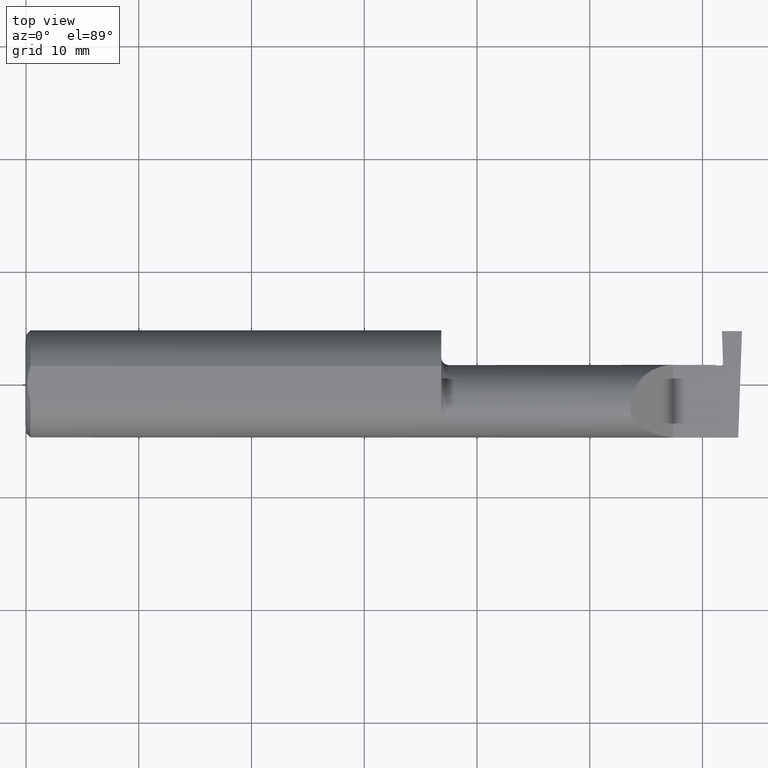
[diagram: clean part render]
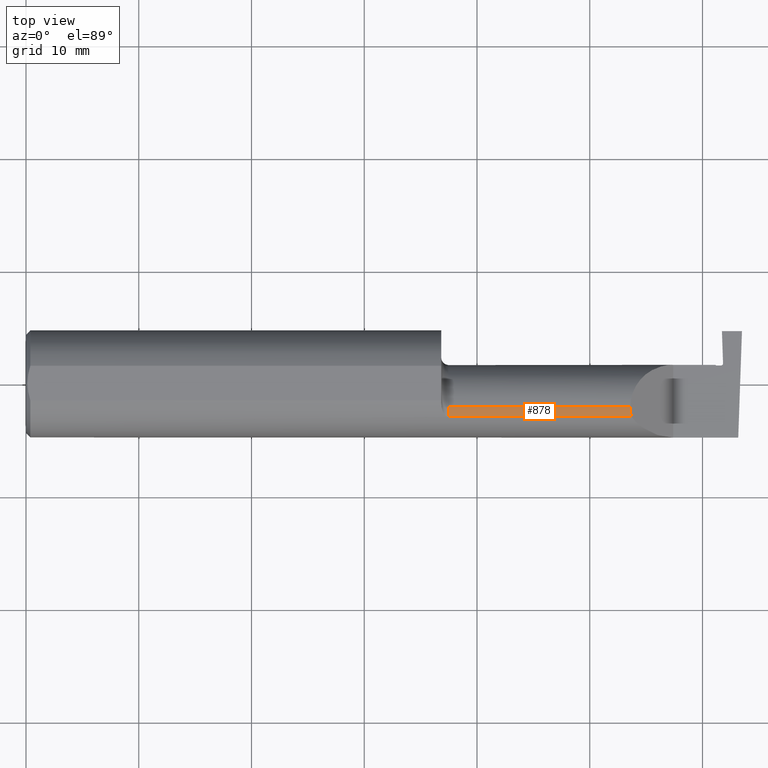
[diagram: same view with one face highlighted and labeled with its STEP entity id]
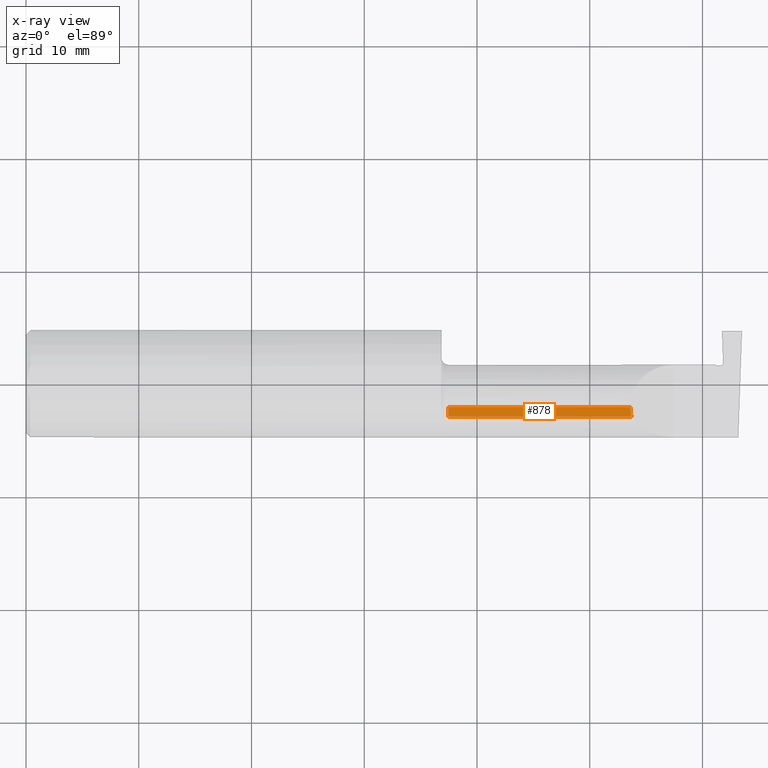
[diagram: x-ray of the same camera — body ghosted, the highlighted face saturated]
A machine part, top view. The second image highlights one B-rep face of the part: STEP entity #878.
The next image is the same camera in x-ray: the body ghosted, the highlighted face saturated — about 0% of this face is hidden behind the body in this view.
In plain terms, the highlighted cylindrical surface (partial cylindrical patch) has radius 3.81 mm, axis along (-1, -0, -0).
Its self-contained STEP definition (entity closure, byte-faithful):
#7 = CARTESIAN_POINT ( 'NONE',  ( 1.474999999999999867, -0.08334999999999996578, 0.000000000000000000 ) ) ;
#44 = CARTESIAN_POINT ( 'NONE',  ( 1.450000000000000178, -0.08334999999999996578, 0.1499999999999999944 ) ) ;
#54 = LINE ( 'NONE', #44, #651 ) ;
#61 = CARTESIAN_POINT ( 'NONE',  ( 2.110000000000001208, -0.08334999999999996578, 0.1499999999999999944 ) ) ;
#92 = ORIENTED_EDGE ( 'NONE', *, *, #244, .F. ) ;
#101 = FACE_OUTER_BOUND ( 'NONE', #793, .T. ) ;
#110 = CARTESIAN_POINT ( 'NONE',  ( 1.474999999999999867, -0.08334999999999996578, 0.1499999999999999944 ) ) ;
#244 = EDGE_CURVE ( 'NONE', #1002, #601, #381, .T. ) ;
#256 = DIRECTION ( 'NONE',  ( 0.000000000000000000, 0.000000000000000000, 1.000000000000000000 ) ) ;
#296 = DIRECTION ( 'NONE',  ( -1.000000000000000000, -0.000000000000000000, -0.000000000000000000 ) ) ;
#304 = EDGE_CURVE ( 'NONE', #312, #421, #945, .T. ) ;
#312 = VERTEX_POINT ( 'NONE', #524 ) ;
#371 = CARTESIAN_POINT ( 'NONE',  ( 2.113883229301070532, -0.1172600179964009143, 0.1461167706989301707 ) ) ;
#381 = CIRCLE ( 'NONE', #966, 0.1499999999999999944 ) ;
#397 = ORIENTED_EDGE ( 'NONE', *, *, #706, .T. ) ;
#420 = LINE ( 'NONE', #974, #770 ) ;
#421 = VERTEX_POINT ( 'NONE', #877 ) ;
#448 = AXIS2_PLACEMENT_3D ( 'NONE', #497, #826, #661 ) ;
#497 = CARTESIAN_POINT ( 'NONE',  ( 1.450000000000000178, -0.08334999999999996578, 0.000000000000000000 ) ) ;
#515 = ORIENTED_EDGE ( 'NONE', *, *, #304, .T. ) ;
#524 = CARTESIAN_POINT ( 'NONE',  ( 2.113883229301070532, -0.1172600179964009143, 0.1461167706989301707 ) ) ;
#526 = CARTESIAN_POINT ( 'NONE',  ( 1.474999999999999867, -0.1172600179964007477, 0.1461167706989302817 ) ) ;
#580 = EDGE_CURVE ( 'NONE', #1002, #312, #420, .T. ) ;
#601 = VERTEX_POINT ( 'NONE', #110 ) ;
#651 = VECTOR ( 'NONE', #296, 39.37007874015748143 ) ;
#661 = DIRECTION ( 'NONE',  ( 0.000000000000000000, 0.000000000000000000, 1.000000000000000000 ) ) ;
#706 = EDGE_CURVE ( 'NONE', #421, #601, #54, .T. ) ;
#750 = CYLINDRICAL_SURFACE ( 'NONE', #448, 0.1499999999999999944 ) ;
#763 = CARTESIAN_POINT ( 'NONE',  ( 2.111300037307155986, -0.1061291577212410964, 0.1486999626928445783 ) ) ;
#770 = VECTOR ( 'NONE', #908, 39.37007874015748143 ) ;
#793 = EDGE_LOOP ( 'NONE', ( #515, #397, #92, #1040 ) ) ;
#826 = DIRECTION ( 'NONE',  ( -1.000000000000000000, -0.000000000000000000, -0.000000000000000000 ) ) ;
#877 = CARTESIAN_POINT ( 'NONE',  ( 2.110000000000001208, -0.08334999999999996578, 0.1499999999999999944 ) ) ;
#878 = ADVANCED_FACE ( 'NONE', ( #101 ), #750, .T. ) ;
#896 = DIRECTION ( 'NONE',  ( -1.000000000000000000, -0.000000000000000000, -0.000000000000000000 ) ) ;
#908 = DIRECTION ( 'NONE',  ( 1.000000000000000000, 0.000000000000000000, 0.000000000000000000 ) ) ;
#945 =( BOUNDED_CURVE ( )  B_SPLINE_CURVE ( 3, ( #371, #763, #1016, #61 ),
 .UNSPECIFIED., .F., .T. ) 
 B_SPLINE_CURVE_WITH_KNOTS ( ( 4, 4 ),
 ( 6.055147272130140479, 6.283185307179586232 ),
 .UNSPECIFIED. ) 
 CURVE ( )  GEOMETRIC_REPRESENTATION_ITEM ( )  RATIONAL_B_SPLINE_CURVE ( ( 1.000000000000000000, 0.9956712472009929815, 0.9956712472009929815, 1.000000000000000000 ) ) 
 REPRESENTATION_ITEM ( '' )  );
#966 = AXIS2_PLACEMENT_3D ( 'NONE', #7, #896, #256 ) ;
#974 = CARTESIAN_POINT ( 'NONE',  ( 1.950000000000000178, -0.1172600179964007061, 0.1461167706989303094 ) ) ;
#1002 = VERTEX_POINT ( 'NONE', #526 ) ;
#1016 = CARTESIAN_POINT ( 'NONE',  ( 2.110000000000000764, -0.09477667630339427218, 0.1499999999999999944 ) ) ;
#1040 = ORIENTED_EDGE ( 'NONE', *, *, #580, .T. ) ;